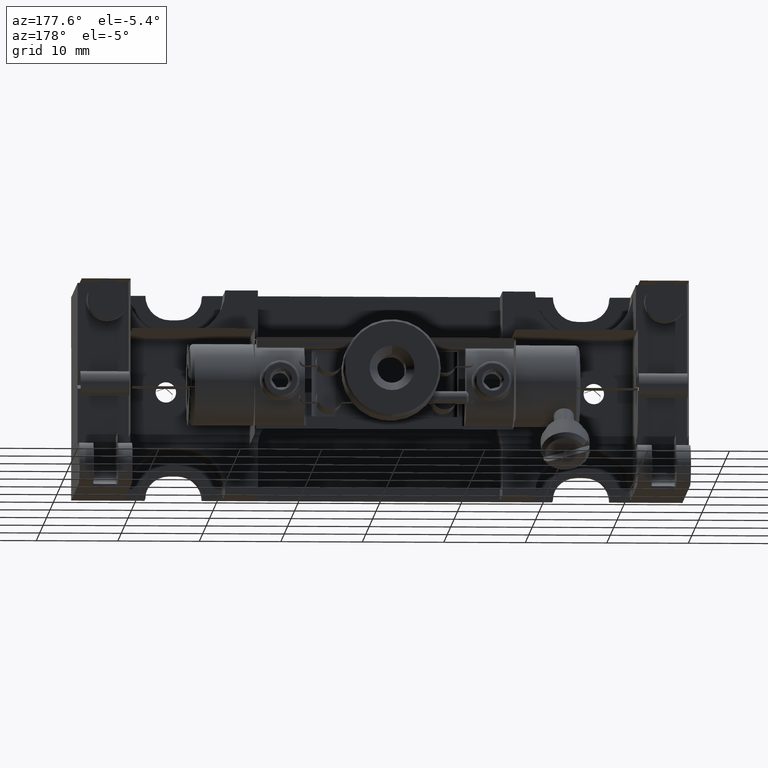
[diagram: clean part render]
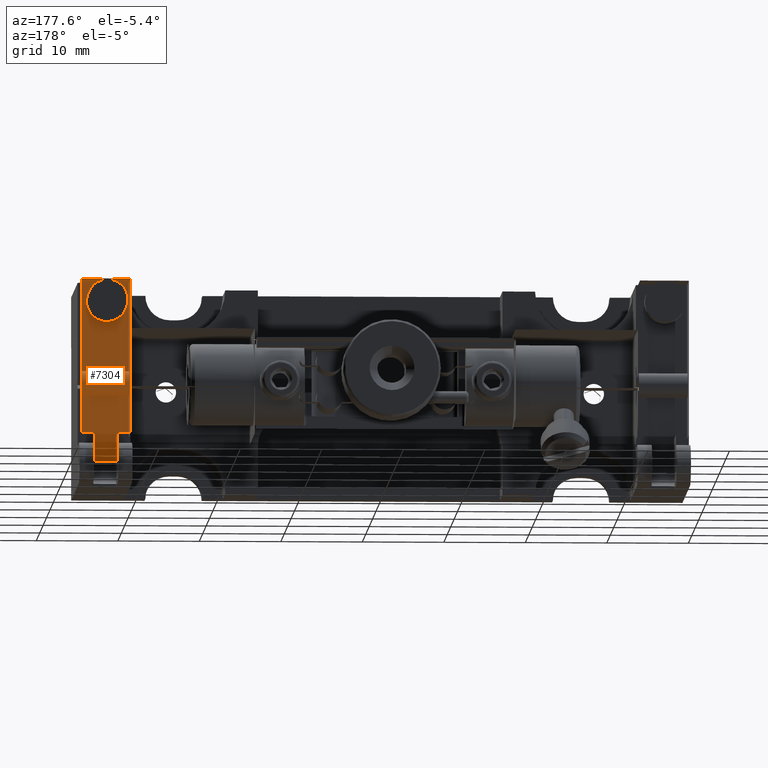
[diagram: same view with one face highlighted and labeled with its STEP entity id]
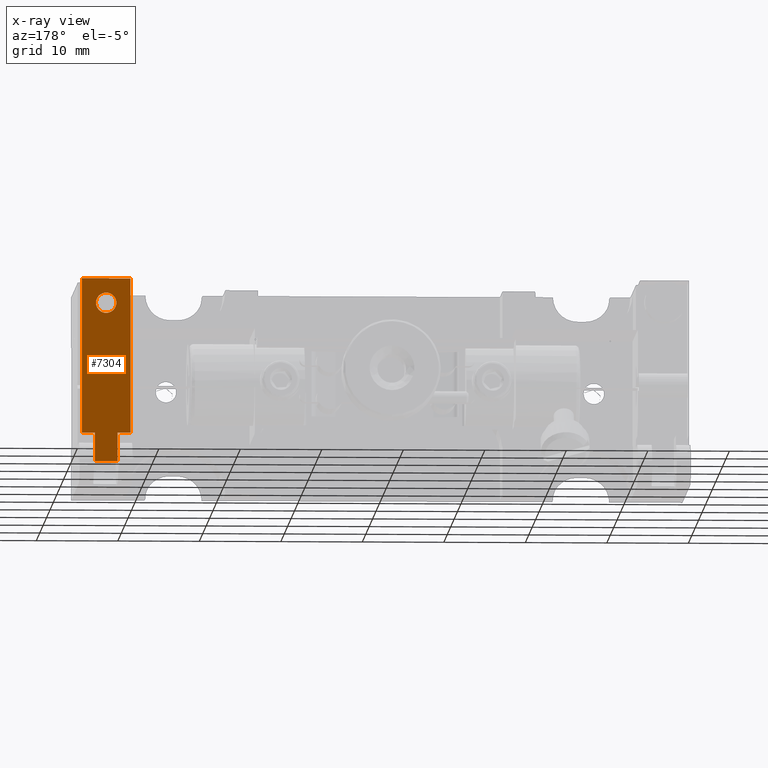
[diagram: x-ray of the same camera — body ghosted, the highlighted face saturated]
A machine part, auxiliary view. The second image highlights one B-rep face of the part: STEP entity #7304.
The next image is the same camera in x-ray: the body ghosted, the highlighted face saturated — about 0% of this face is hidden behind the body in this view.
In plain terms, the highlighted planar face has unit normal (0, -1, 0).
Its self-contained STEP definition (entity closure, byte-faithful):
#60 = CARTESIAN_POINT ( 'NONE',  ( 55.29702349384982085, 53.17343476192746721, 75.74532398553299117 ) ) ;
#170 = CARTESIAN_POINT ( 'NONE',  ( 54.55491615511452608, 53.17343476192748142, 74.27772781306168781 ) ) ;
#269 = CARTESIAN_POINT ( 'NONE',  ( 54.07634596628248147, 53.17343476192746721, 76.68264947075040538 ) ) ;
#343 = CARTESIAN_POINT ( 'NONE',  ( 57.07634596628248858, 53.17343476192746721, 78.43264947075040538 ) ) ;
#473 = CARTESIAN_POINT ( 'NONE',  ( 55.20444859140857830, 53.17343476192747431, 75.97162913777546578 ) ) ;
#503 = CARTESIAN_POINT ( 'NONE',  ( 52.85566843871514209, 53.17343476192746721, 75.11997495597270813 ) ) ;
#655 = VERTEX_POINT ( 'NONE', #343 ) ;
#696 = CARTESIAN_POINT ( 'NONE',  ( 54.07634596628248147, 53.17343476192746721, 76.68264947075040538 ) ) ;
#1026 = ORIENTED_EDGE ( 'NONE', *, *, #18351, .T. ) ;
#1508 = LINE ( 'NONE', #3584, #5135 ) ;
#1609 = CARTESIAN_POINT ( 'NONE',  ( 54.27278839244678466, 53.17343476192746721, 76.67167889279139104 ) ) ;
#1711 = EDGE_CURVE ( 'NONE', #3831, #19091, #1508, .T. ) ;
#1714 = CARTESIAN_POINT ( 'NONE',  ( 54.61532563330963796, 53.17343476192747431, 74.30454684562643308 ) ) ;
#1820 = CARTESIAN_POINT ( 'NONE',  ( 54.40580798074101665, 53.17343476192746721, 76.63968137374432388 ) ) ;
#1993 = LINE ( 'NONE', #11510, #15306 ) ;
#2216 = CARTESIAN_POINT ( 'NONE',  ( 51.07634596628248147, 53.17343476192746721, 53.43264947075041960 ) ) ;
#2276 = DIRECTION ( 'NONE',  ( -0.000000000000000000, 5.551115123125782702E-17, 1.000000000000000000 ) ) ;
#2348 = CARTESIAN_POINT ( 'NONE',  ( 53.91721479002298878, 53.17343476192746721, 76.68264947075037696 ) ) ;
#2417 = DIRECTION ( 'NONE',  ( 0.000000000000000000, -1.000000000000000000, 5.551115123125782702E-17 ) ) ;
#2655 = CARTESIAN_POINT ( 'NONE',  ( 53.59777577744990396, 53.17343476192748142, 76.58757112843912296 ) ) ;
#3002 = VECTOR ( 'NONE', #18822, 1000.000000000000000 ) ;
#3279 = CARTESIAN_POINT ( 'NONE',  ( 55.08196739965401889, 53.17343476192748142, 74.67060888142361819 ) ) ;
#3584 = CARTESIAN_POINT ( 'NONE',  ( 55.47634596628248005, 53.17343476192746721, 59.43264947075040538 ) ) ;
#3609 = CARTESIAN_POINT ( 'NONE',  ( 52.97622664412975979, 53.17343476192747431, 74.83612485356837851 ) ) ;
#3831 = VERTEX_POINT ( 'NONE', #11213 ) ;
#3988 = B_SPLINE_CURVE_WITH_KNOTS ( 'NONE', 3,
 ( #269, #17754, #1609, #1820, #11440, #19201, #5245, #9688, #14244, #11234, #4831, #17560, #473, #8043, #6380, #60, #16013, #14561, #16204, #5046, #19102, #11130, #16107, #17449, #3279, #12998, #8141, #11530, #1714, #6798, #170, #6589, #14462, #12890 ),
 .UNSPECIFIED., .F., .F.,
 ( 4, 1, 1, 2, 2, 2, 1, 1, 2, 2, 2, 1, 1, 2, 2, 2, 1, 1, 2, 2, 4 ),
 ( 0.000000000000000000, 0.06250000000000666134, 0.09375000000000895117, 0.1093750000000116435, 0.1250000000000143219, 0.2500000000000049960, 0.3125000000000003331, 0.3437500000000008882, 0.3593750000000011657, 0.3750000000000014433, 0.4999999999999731326, 0.5624999999999590328, 0.5937499999999573674, 0.6093749999999565903, 0.6249999999999558131, 0.7499999999999663602, 0.8124999999999680256, 0.8437499999999695799, 0.8593749999999725775, 0.8749999999999755751, 1.000000000000000000 ),
 .UNSPECIFIED. ) ;
#3989 = CARTESIAN_POINT ( 'NONE',  ( 52.67634596628248289, 53.17343476192746721, 59.43264947075040538 ) ) ;
#4098 = ORIENTED_EDGE ( 'NONE', *, *, #6779, .T. ) ;
#4209 = CARTESIAN_POINT ( 'NONE',  ( 53.25333146824593200, 53.17343476192747431, 76.37745439081369625 ) ) ;
#4350 = CARTESIAN_POINT ( 'NONE',  ( 52.67634596628248289, 53.17343476192746721, 53.43264947075041960 ) ) ;
#4831 = CARTESIAN_POINT ( 'NONE',  ( 55.10163595651247448, 53.17343476192746010, 76.15704159876058554 ) ) ;
#4949 = CARTESIAN_POINT ( 'NONE',  ( 57.07634596628248858, 53.17343476192746721, 59.43264947075040538 ) ) ;
#5046 = CARTESIAN_POINT ( 'NONE',  ( 55.28342203614943884, 53.17343476192748142, 75.10329915432492953 ) ) ;
#5135 = VECTOR ( 'NONE', #11443, 1000.000000000000000 ) ;
#5136 = VERTEX_POINT ( 'NONE', #12017 ) ;
#5245 = CARTESIAN_POINT ( 'NONE',  ( 54.51644308260490845, 53.17343476192746010, 76.60280152168711254 ) ) ;
#5274 = CARTESIAN_POINT ( 'NONE',  ( 52.82631231533161298, 53.17343476192746721, 75.51195158337284852 ) ) ;
#5318 = DIRECTION ( 'NONE',  ( 1.000000000000000000, 0.000000000000000000, 0.000000000000000000 ) ) ;
#5354 = VERTEX_POINT ( 'NONE', #5395 ) ;
#5369 = CARTESIAN_POINT ( 'NONE',  ( 53.57633950789652033, 53.17343476192748142, 76.57849953992750613 ) ) ;
#5395 = CARTESIAN_POINT ( 'NONE',  ( 51.07634596628248147, 53.17343476192746721, 59.43264947075040538 ) ) ;
#5438 = PLANE ( 'NONE',  #5762 ) ;
#5571 = CARTESIAN_POINT ( 'NONE',  ( 52.89992448620753862, 53.17343476192747431, 75.85565077510119636 ) ) ;
#5672 = CARTESIAN_POINT ( 'NONE',  ( 53.35195383827224447, 53.17343476192747431, 76.45793946097937521 ) ) ;
#5762 = AXIS2_PLACEMENT_3D ( 'NONE', #2216, #2417, #18044 ) ;
#5855 = LINE ( 'NONE', #20100, #11037 ) ;
#6380 = CARTESIAN_POINT ( 'NONE',  ( 55.23127607370563652, 53.17343476192747431, 75.91119834172398839 ) ) ;
#6566 = CARTESIAN_POINT ( 'NONE',  ( 55.47634596628248005, 53.17343476192746721, 55.93264947075041249 ) ) ;
#6589 = CARTESIAN_POINT ( 'NONE',  ( 54.38884993819709734, 53.17343476192747431, 74.21190434530772961 ) ) ;
#6723 = CARTESIAN_POINT ( 'NONE',  ( 53.69063516191897634, 53.17343476192747431, 74.24344475693986567 ) ) ;
#6779 = EDGE_CURVE ( 'NONE', #5136, #5354, #5855, .T. ) ;
#6798 = CARTESIAN_POINT ( 'NONE',  ( 54.57635242466961500, 53.17343476192746010, 74.28679940157418571 ) ) ;
#6850 = CARTESIAN_POINT ( 'NONE',  ( 55.47634596628248005, 53.17343476192746721, 53.43264947075041960 ) ) ;
#7304 = ADVANCED_FACE ( 'NONE', ( #8635, #13392 ), #5438, .T. ) ;
#7428 = CARTESIAN_POINT ( 'NONE',  ( 57.07634596628248858, 53.17343476192746721, 53.43264947075041960 ) ) ;
#8005 = VECTOR ( 'NONE', #5318, 1000.000000000000000 ) ;
#8043 = CARTESIAN_POINT ( 'NONE',  ( 55.22219603545985933, 53.17343476192746721, 75.93265592913638784 ) ) ;
#8141 = CARTESIAN_POINT ( 'NONE',  ( 54.80073809429703857, 53.17343476192746721, 74.40735948052478932 ) ) ;
#8171 = CARTESIAN_POINT ( 'NONE',  ( 53.74688395182329259, 53.17343476192748142, 74.22561756775648689 ) ) ;
#8370 = CARTESIAN_POINT ( 'NONE',  ( 53.31430537696704164, 53.17343476192747431, 74.42702803736312944 ) ) ;
#8476 = CARTESIAN_POINT ( 'NONE',  ( 53.99695875039894588, 53.17343476192748852, 74.18264947075040538 ) ) ;
#8635 = FACE_OUTER_BOUND ( 'NONE', #13764, .T. ) ;
#8832 = EDGE_CURVE ( 'NONE', #10776, #3831, #14918, .T. ) ;
#8968 = CARTESIAN_POINT ( 'NONE',  ( 53.53736629925739265, 53.17343476192748142, 76.56075209587599772 ) ) ;
#9161 = ORIENTED_EDGE ( 'NONE', *, *, #12895, .F. ) ;
#9412 = CARTESIAN_POINT ( 'NONE',  ( 52.67634596628248289, 53.17343476192746721, 55.93264947075041249 ) ) ;
#9425 = LINE ( 'NONE', #4350, #11248 ) ;
#9627 = VECTOR ( 'NONE', #16835, 1000.000000000000000 ) ;
#9688 = CARTESIAN_POINT ( 'NONE',  ( 54.69663451827407386, 53.17343476192746721, 76.53155145020896555 ) ) ;
#9776 = ORIENTED_EDGE ( 'NONE', *, *, #8832, .T. ) ;
#9911 = CARTESIAN_POINT ( 'NONE',  ( 52.92141585885937616, 53.17343476192746721, 74.95410059977625394 ) ) ;
#10004 = VERTEX_POINT ( 'NONE', #9412 ) ;
#10028 = ORIENTED_EDGE ( 'NONE', *, *, #1711, .T. ) ;
#10419 = LINE ( 'NONE', #7428, #9627 ) ;
#10742 = LINE ( 'NONE', #14281, #3002 ) ;
#10776 = VERTEX_POINT ( 'NONE', #6566 ) ;
#10904 = EDGE_CURVE ( 'NONE', #10004, #10776, #13169, .T. ) ;
#11037 = VECTOR ( 'NONE', #11115, 1000.000000000000000 ) ;
#11115 = DIRECTION ( 'NONE',  ( 0.000000000000000000, -5.551115123125782702E-17, -1.000000000000000000 ) ) ;
#11130 = CARTESIAN_POINT ( 'NONE',  ( 55.25276744635744564, 53.17343476192746721, 75.00964816640092181 ) ) ;
#11160 = CARTESIAN_POINT ( 'NONE',  ( 52.82641326818419714, 53.17343476192746010, 75.27404524550557596 ) ) ;
#11213 = CARTESIAN_POINT ( 'NONE',  ( 55.47634596628248005, 53.17343476192746721, 59.43264947075040538 ) ) ;
#11234 = CARTESIAN_POINT ( 'NONE',  ( 55.02115088634635498, 53.17343476192746010, 76.25566396878693354 ) ) ;
#11248 = VECTOR ( 'NONE', #14298, 1000.000000000000000 ) ;
#11440 = CARTESIAN_POINT ( 'NONE',  ( 54.46205677064556028, 53.17343476192747431, 76.62185418456098773 ) ) ;
#11443 = DIRECTION ( 'NONE',  ( 1.000000000000000000, -0.000000000000000000, 0.000000000000000000 ) ) ;
#11510 = CARTESIAN_POINT ( 'NONE',  ( 52.67634596628248289, 53.17343476192746721, 59.43264947075040538 ) ) ;
#11530 = CARTESIAN_POINT ( 'NONE',  ( 54.67287058347488937, 53.17343476192746721, 74.33253014860513019 ) ) ;
#11540 = ORIENTED_EDGE ( 'NONE', *, *, #16660, .T. ) ;
#11557 = CARTESIAN_POINT ( 'NONE',  ( 52.83725765507745820, 53.17343476192747431, 75.62894296620869738 ) ) ;
#11598 = CARTESIAN_POINT ( 'NONE',  ( 54.07634596628248147, 53.17343476192746721, 76.68264947075040538 ) ) ;
#12017 = CARTESIAN_POINT ( 'NONE',  ( 51.07634596628248147, 53.17343476192746721, 78.43264947075040538 ) ) ;
#12599 = VERTEX_POINT ( 'NONE', #3989 ) ;
#12890 = CARTESIAN_POINT ( 'NONE',  ( 54.07634596628248147, 53.17343476192746721, 74.18264947075040538 ) ) ;
#12895 = EDGE_CURVE ( 'NONE', #12599, #5354, #1993, .T. ) ;
#12998 = CARTESIAN_POINT ( 'NONE',  ( 54.89936046432151073, 53.17343476192747431, 74.48784455068904720 ) ) ;
#13025 = CARTESIAN_POINT ( 'NONE',  ( 53.45605741428276758, 53.17343476192746721, 74.33374749129548320 ) ) ;
#13169 = LINE ( 'NONE', #16579, #8005 ) ;
#13222 = CARTESIAN_POINT ( 'NONE',  ( 53.13154104621543894, 53.17343476192746721, 74.60963497271927736 ) ) ;
#13351 = EDGE_CURVE ( 'NONE', #19822, #19368, #16743, .T. ) ;
#13392 = FACE_BOUND ( 'NONE', #18211, .T. ) ;
#13628 = CARTESIAN_POINT ( 'NONE',  ( 52.88711285948213714, 53.17343476192747431, 75.81828846923738752 ) ) ;
#13727 = CARTESIAN_POINT ( 'NONE',  ( 53.07072453290608394, 53.17343476192746721, 76.19469006007342671 ) ) ;
#13764 = EDGE_LOOP ( 'NONE', ( #15768, #9776, #10028, #14521, #20289, #4098, #9161, #11540 ) ) ;
#14020 = CARTESIAN_POINT ( 'NONE',  ( 54.07634596628248147, 53.17343476192746721, 74.18264947075040538 ) ) ;
#14193 = EDGE_CURVE ( 'NONE', #655, #5136, #10742, .T. ) ;
#14244 = CARTESIAN_POINT ( 'NONE',  ( 54.83838655560430908, 53.17343476192748142, 76.43827090412692371 ) ) ;
#14281 = CARTESIAN_POINT ( 'NONE',  ( 51.07634596628248147, 53.17343476192746721, 78.43264947075040538 ) ) ;
#14298 = DIRECTION ( 'NONE',  ( 0.000000000000000000, -5.551115123125782702E-17, -1.000000000000000000 ) ) ;
#14462 = CARTESIAN_POINT ( 'NONE',  ( 54.23547714254630847, 53.17343476192745300, 74.18264947075036275 ) ) ;
#14491 = CARTESIAN_POINT ( 'NONE',  ( 53.65330476977809582, 53.17343476192746010, 74.25624376455867548 ) ) ;
#14521 = ORIENTED_EDGE ( 'NONE', *, *, #15369, .T. ) ;
#14538 = DIRECTION ( 'NONE',  ( -1.000000000000000000, -0.000000000000000000, 0.000000000000000000 ) ) ;
#14561 = CARTESIAN_POINT ( 'NONE',  ( 55.32637961723336417, 53.17343476192746010, 75.35334735813070495 ) ) ;
#14590 = CARTESIAN_POINT ( 'NONE',  ( 53.87990354011727590, 53.17343476192746721, 74.19362004870940552 ) ) ;
#14693 = CARTESIAN_POINT ( 'NONE',  ( 52.94824334115371300, 53.17343476192746721, 74.89366980372989246 ) ) ;
#14794 = CARTESIAN_POINT ( 'NONE',  ( 53.63624884996107767, 53.17343476192748142, 74.26249741981327190 ) ) ;
#14918 = LINE ( 'NONE', #6850, #19264 ) ;
#15306 = VECTOR ( 'NONE', #14538, 1000.000000000000000 ) ;
#15369 = EDGE_CURVE ( 'NONE', #19091, #655, #10419, .T. ) ;
#15768 = ORIENTED_EDGE ( 'NONE', *, *, #10904, .T. ) ;
#16013 = CARTESIAN_POINT ( 'NONE',  ( 55.32627866438073738, 53.17343476192747431, 75.59125369598986310 ) ) ;
#16041 = CARTESIAN_POINT ( 'NONE',  ( 54.07634596628248147, 53.17343476192746721, 74.18264947075040538 ) ) ;
#16107 = CARTESIAN_POINT ( 'NONE',  ( 55.24649801721810860, 53.17343476192747431, 74.99255235442683443 ) ) ;
#16204 = CARTESIAN_POINT ( 'NONE',  ( 55.31543427748750474, 53.17343476192746721, 75.23635597529681718 ) ) ;
#16434 = CARTESIAN_POINT ( 'NONE',  ( 52.90619391534628591, 53.17343476192746010, 75.87274658707322317 ) ) ;
#16529 = CARTESIAN_POINT ( 'NONE',  ( 52.97744398681964384, 53.17343476192746721, 76.05293802273884296 ) ) ;
#16579 = CARTESIAN_POINT ( 'NONE',  ( 51.07634596628248147, 53.17343476192746721, 55.93264947075041249 ) ) ;
#16660 = EDGE_CURVE ( 'NONE', #12599, #10004, #9425, .T. ) ;
#16743 = B_SPLINE_CURVE_WITH_KNOTS ( 'NONE', 3,
 ( #16041, #8476, #14590, #8171, #6723, #14491, #14794, #13025, #8370, #13222, #19338, #3609, #14693, #19431, #9911, #503, #11160, #5274, #11557, #17877, #13628, #5571, #16434, #16529, #13727, #4209, #5672, #19824, #8968, #5369, #2655, #19634, #2348, #696 ),
 .UNSPECIFIED., .F., .F.,
 ( 4, 1, 1, 2, 2, 2, 1, 1, 2, 2, 2, 1, 1, 2, 2, 2, 1, 1, 2, 2, 4 ),
 ( 0.000000000000000000, 0.06250000000000251188, 0.09375000000000272005, 0.1093749999999986400, 0.1249999999999945460, 0.2499999999999793221, 0.3124999999999699130, 0.3437499999999681366, 0.3593749999999705791, 0.3749999999999730216, 0.5000000000000109912, 0.5625000000000299760, 0.5937500000000339728, 0.6093750000000360822, 0.6250000000000379696, 0.7500000000000297540, 0.8125000000000222045, 0.8437500000000183187, 0.8593750000000164313, 0.8750000000000145439, 1.000000000000000000 ),
 .UNSPECIFIED. ) ;
#16835 = DIRECTION ( 'NONE',  ( -0.000000000000000000, 5.551115123125782702E-17, 1.000000000000000000 ) ) ;
#17449 = CARTESIAN_POINT ( 'NONE',  ( 55.17524794574992342, 53.17343476192747431, 74.81236091876768057 ) ) ;
#17560 = CARTESIAN_POINT ( 'NONE',  ( 55.17646528843104647, 53.17343476192748142, 76.02917408793955190 ) ) ;
#17754 = CARTESIAN_POINT ( 'NONE',  ( 54.15573318216549126, 53.17343476192746721, 76.68264947075040538 ) ) ;
#17850 = ORIENTED_EDGE ( 'NONE', *, *, #13351, .T. ) ;
#17877 = CARTESIAN_POINT ( 'NONE',  ( 52.86926989641555252, 53.17343476192748142, 75.76199978717943395 ) ) ;
#18044 = DIRECTION ( 'NONE',  ( 0.000000000000000000, -5.551115123125782702E-17, -1.000000000000000000 ) ) ;
#18211 = EDGE_LOOP ( 'NONE', ( #1026, #17850 ) ) ;
#18351 = EDGE_CURVE ( 'NONE', #19368, #19822, #3988, .T. ) ;
#18822 = DIRECTION ( 'NONE',  ( -1.000000000000000000, -0.000000000000000000, -0.000000000000000000 ) ) ;
#19091 = VERTEX_POINT ( 'NONE', #4949 ) ;
#19102 = CARTESIAN_POINT ( 'NONE',  ( 55.26557907308285422, 53.17343476192747431, 75.04701047226572541 ) ) ;
#19201 = CARTESIAN_POINT ( 'NONE',  ( 54.49938716278663975, 53.17343476192746010, 76.60905517694213529 ) ) ;
#19264 = VECTOR ( 'NONE', #2276, 1000.000000000000000 ) ;
#19338 = CARTESIAN_POINT ( 'NONE',  ( 53.05105597604691781, 53.17343476192744589, 74.70825734274967544 ) ) ;
#19368 = VERTEX_POINT ( 'NONE', #11598 ) ;
#19431 = CARTESIAN_POINT ( 'NONE',  ( 52.93049589710364700, 53.17343476192747431, 74.93264301236699509 ) ) ;
#19634 = CARTESIAN_POINT ( 'NONE',  ( 53.76384199437218570, 53.17343476192746721, 76.65339459619309537 ) ) ;
#19822 = VERTEX_POINT ( 'NONE', #14020 ) ;
#19824 = CARTESIAN_POINT ( 'NONE',  ( 53.47982134909329233, 53.17343476192747431, 76.53276879289816748 ) ) ;
#20100 = CARTESIAN_POINT ( 'NONE',  ( 51.07634596628248147, 53.17343476192746721, 53.43264947075041960 ) ) ;
#20289 = ORIENTED_EDGE ( 'NONE', *, *, #14193, .T. ) ;